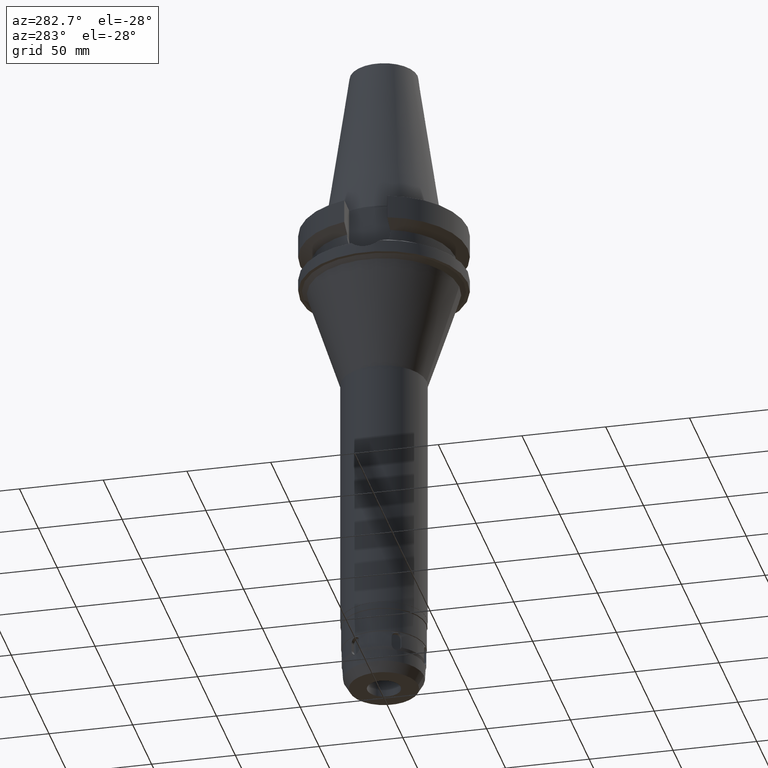
[diagram: clean part render]
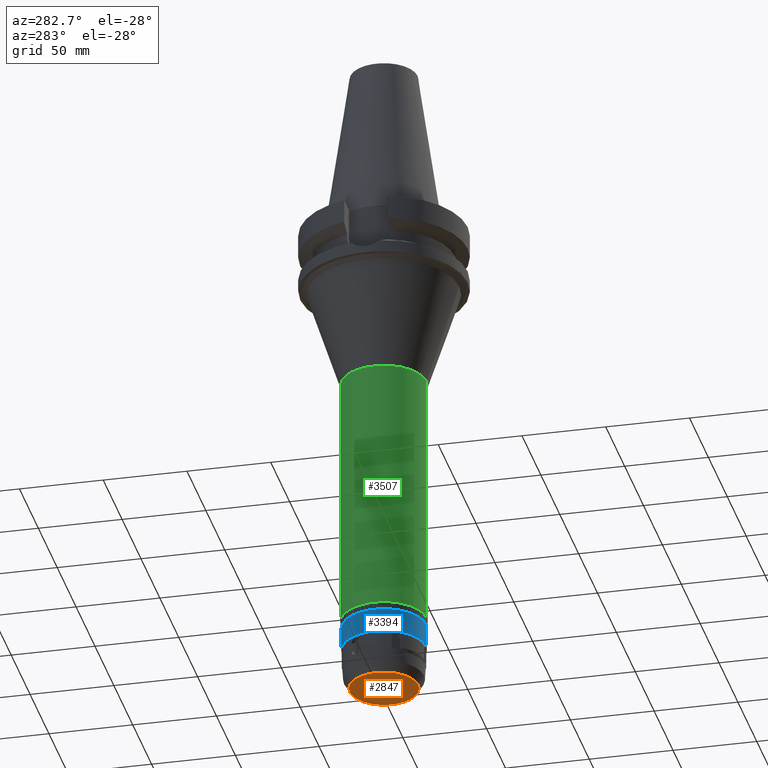
[diagram: same view with three faces highlighted in distinct colors, each labeled with its STEP entity id]
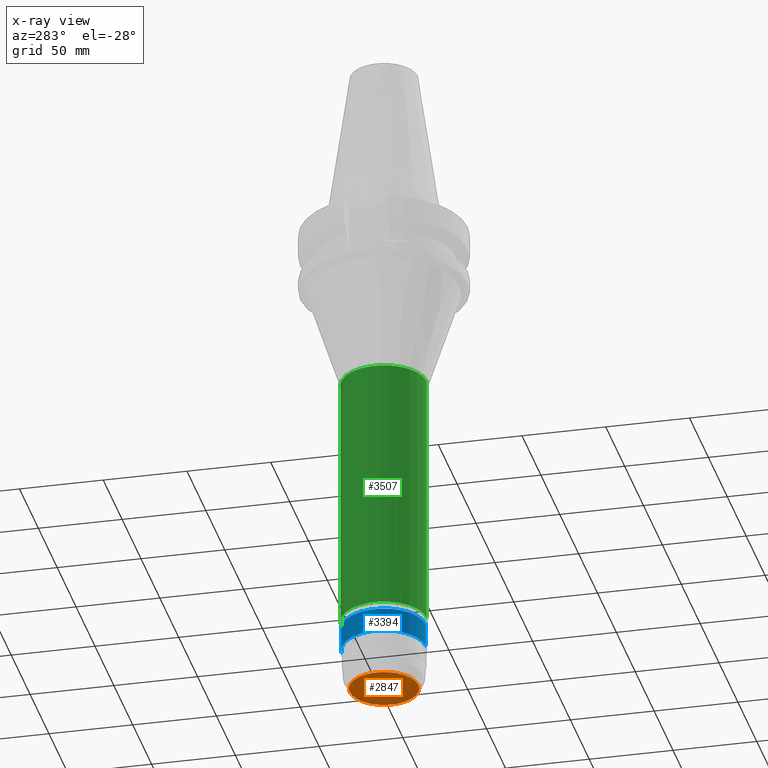
[diagram: x-ray of the same camera — body ghosted, the three highlighted faces saturated]
A machine part, auxiliary view with three faces highlighted in distinct colors.
The next image is the same camera in x-ray (body ghosted, the three faces saturated) — at least one of them is partly hidden behind the body in this view.
Their STEP definitions:

[orange] entity #2847 — the highlighted planar face has unit normal (0, 0, -1).
#216=CARTESIAN_POINT('',(0.E0,-2.413644129972E-14,-3.E2));
#217=DIRECTION('',(0.E0,0.E0,1.E0));
#218=DIRECTION('',(0.E0,-1.E0,0.E0));
#219=AXIS2_PLACEMENT_3D('',#216,#217,#218);
#224=CARTESIAN_POINT('',(0.E0,-2.413644129972E-14,-3.E2));
#225=DIRECTION('',(0.E0,0.E0,1.E0));
#226=DIRECTION('',(0.E0,1.E0,0.E0));
#227=AXIS2_PLACEMENT_3D('',#224,#225,#226);
#232=CARTESIAN_POINT('',(0.E0,2.717368782628E-14,-3.E2));
#233=DIRECTION('',(0.E0,0.E0,-1.E0));
#234=DIRECTION('',(0.E0,-1.E0,0.E0));
#235=AXIS2_PLACEMENT_3D('',#232,#233,#234);
#240=CARTESIAN_POINT('',(0.E0,2.717368782628E-14,-3.E2));
#241=DIRECTION('',(0.E0,0.E0,-1.E0));
#242=DIRECTION('',(0.E0,1.E0,0.E0));
#243=AXIS2_PLACEMENT_3D('',#240,#241,#242);
#2333=CARTESIAN_POINT('',(0.E0,1.E1,-3.E2));
#2334=VERTEX_POINT('',#2333);
#2335=CARTESIAN_POINT('',(0.E0,-1.E1,-3.E2));
#2336=VERTEX_POINT('',#2335);
#2337=CARTESIAN_POINT('',(0.E0,-2.05E1,-3.E2));
#2338=CARTESIAN_POINT('',(0.E0,2.05E1,-3.E2));
#2339=VERTEX_POINT('',#2337);
#2340=VERTEX_POINT('',#2338);
#2832=CARTESIAN_POINT('',(0.E0,-2.449293598295E-14,-3.E2));
#2833=DIRECTION('',(0.E0,0.E0,-1.E0));
#2834=DIRECTION('',(0.E0,-1.E0,0.E0));
#2835=AXIS2_PLACEMENT_3D('',#2832,#2833,#2834);
#2836=PLANE('',#2835);
#2838=ORIENTED_EDGE('',*,*,#2837,.T.);
#2840=ORIENTED_EDGE('',*,*,#2839,.T.);
#2841=EDGE_LOOP('',(#2838,#2840));
#2842=FACE_OUTER_BOUND('',#2841,.F.);
#2843=ORIENTED_EDGE('',*,*,#2825,.T.);
#2844=ORIENTED_EDGE('',*,*,#2814,.T.);
#2845=EDGE_LOOP('',(#2843,#2844));
#2846=FACE_BOUND('',#2845,.F.);
#220=CIRCLE('',#219,2.05E1);
#228=CIRCLE('',#227,2.05E1);
#236=CIRCLE('',#235,1.E1);
#244=CIRCLE('',#243,1.E1);
#2814=EDGE_CURVE('',#2334,#2336,#244,.T.);
#2825=EDGE_CURVE('',#2336,#2334,#236,.T.);
#2837=EDGE_CURVE('',#2339,#2340,#220,.T.);
#2839=EDGE_CURVE('',#2340,#2339,#228,.T.);
#2847=ADVANCED_FACE('',(#2842,#2846),#2836,.T.);

[blue] entity #3394 — the highlighted cylindrical surface (partial cylindrical patch) has radius 25 mm, axis along (0, 0, -1).
#1165=CARTESIAN_POINT('',(0.E0,-2.143438060208E-14,-2.749E2));
#1166=DIRECTION('',(0.E0,0.E0,1.E0));
#1167=DIRECTION('',(0.E0,1.E0,0.E0));
#1168=AXIS2_PLACEMENT_3D('',#1165,#1166,#1167);
#1188=DIRECTION('',(0.E0,0.E0,-1.E0));
#1189=VECTOR('',#1188,1.435E1);
#1190=CARTESIAN_POINT('',(0.E0,-2.5E1,-2.6055E2));
#1191=LINE('',#1190,#1189);
#1195=DIRECTION('',(0.E0,0.E0,-1.E0));
#1196=VECTOR('',#1195,1.435E1);
#1197=CARTESIAN_POINT('',(0.E0,2.5E1,-2.6055E2));
#1198=LINE('',#1197,#1196);
#1240=CARTESIAN_POINT('',(0.E0,-1.964027304133E-14,-2.6055E2));
#1241=DIRECTION('',(0.E0,0.E0,-1.E0));
#1242=DIRECTION('',(0.E0,-1.E0,0.E0));
#1243=AXIS2_PLACEMENT_3D('',#1240,#1241,#1242);
#2465=CARTESIAN_POINT('',(0.E0,2.5E1,-2.749E2));
#2466=VERTEX_POINT('',#2465);
#2467=CARTESIAN_POINT('',(0.E0,-2.5E1,-2.749E2));
#2468=VERTEX_POINT('',#2467);
#2469=CARTESIAN_POINT('',(0.E0,2.5E1,-2.6055E2));
#2470=VERTEX_POINT('',#2469);
#2471=CARTESIAN_POINT('',(0.E0,-2.5E1,-2.6055E2));
#2472=VERTEX_POINT('',#2471);
#3380=CARTESIAN_POINT('',(0.E0,2.717368782628E-14,1.2189E2));
#3381=DIRECTION('',(0.E0,0.E0,-1.E0));
#3382=DIRECTION('',(0.E0,-1.E0,0.E0));
#3383=AXIS2_PLACEMENT_3D('',#3380,#3381,#3382);
#3384=CYLINDRICAL_SURFACE('',#3383,2.5E1);
#3386=ORIENTED_EDGE('',*,*,#3385,.F.);
#3388=ORIENTED_EDGE('',*,*,#3387,.F.);
#3390=ORIENTED_EDGE('',*,*,#3389,.T.);
#3391=ORIENTED_EDGE('',*,*,#3373,.F.);
#3392=EDGE_LOOP('',(#3386,#3388,#3390,#3391));
#3393=FACE_OUTER_BOUND('',#3392,.F.);
#1169=CIRCLE('',#1168,2.5E1);
#1244=CIRCLE('',#1243,2.5E1);
#3373=EDGE_CURVE('',#2466,#2468,#1169,.T.);
#3385=EDGE_CURVE('',#2470,#2466,#1198,.T.);
#3387=EDGE_CURVE('',#2472,#2470,#1244,.T.);
#3389=EDGE_CURVE('',#2472,#2468,#1191,.T.);
#3394=ADVANCED_FACE('',(#3393),#3384,.T.);

[green] entity #3507 — the highlighted cylindrical surface (partial cylindrical patch) has radius 25.5 mm, axis along (0, 0, -1).
#1270=CARTESIAN_POINT('',(0.E0,2.717368782628E-14,-2.562E2));
#1271=DIRECTION('',(0.E0,0.E0,1.E0));
#1272=DIRECTION('',(0.E0,1.E0,0.E0));
#1273=AXIS2_PLACEMENT_3D('',#1270,#1271,#1272);
#1294=DIRECTION('',(0.E0,-1.002799547527E-14,-1.E0));
#1295=VECTOR('',#1294,1.55883E2);
#1296=CARTESIAN_POINT('',(0.E0,2.55E1,-1.00317E2));
#1297=LINE('',#1296,#1295);
#1301=DIRECTION('',(0.E0,1.002799547527E-14,-1.E0));
#1302=VECTOR('',#1301,1.55883E2);
#1303=CARTESIAN_POINT('',(0.E0,-2.55E1,-1.00317E2));
#1304=LINE('',#1303,#1302);
#1315=CARTESIAN_POINT('',(0.E0,0.E0,-1.00317E2));
#1316=DIRECTION('',(0.E0,0.E0,-1.E0));
#1317=DIRECTION('',(0.E0,-1.E0,0.E0));
#1318=AXIS2_PLACEMENT_3D('',#1315,#1316,#1317);
#2481=CARTESIAN_POINT('',(0.E0,-2.55E1,-2.562E2));
#2482=CARTESIAN_POINT('',(0.E0,2.55E1,-2.562E2));
#2483=VERTEX_POINT('',#2481);
#2484=VERTEX_POINT('',#2482);
#2485=CARTESIAN_POINT('',(0.E0,2.55E1,-1.00317E2));
#2486=VERTEX_POINT('',#2485);
#2487=CARTESIAN_POINT('',(0.E0,-2.55E1,-1.00317E2));
#2488=VERTEX_POINT('',#2487);
#3495=CARTESIAN_POINT('',(0.E0,2.717368782628E-14,1.2189E2));
#3496=DIRECTION('',(0.E0,0.E0,-1.E0));
#3497=DIRECTION('',(0.E0,-1.E0,0.E0));
#3498=AXIS2_PLACEMENT_3D('',#3495,#3496,#3497);
#3499=CYLINDRICAL_SURFACE('',#3498,2.55E1);
#3500=ORIENTED_EDGE('',*,*,#3485,.F.);
#3502=ORIENTED_EDGE('',*,*,#3501,.F.);
#3503=ORIENTED_EDGE('',*,*,#3488,.T.);
#3504=ORIENTED_EDGE('',*,*,#3471,.F.);
#3505=EDGE_LOOP('',(#3500,#3502,#3503,#3504));
#3506=FACE_OUTER_BOUND('',#3505,.F.);
#1274=CIRCLE('',#1273,2.55E1);
#1319=CIRCLE('',#1318,2.55E1);
#3471=EDGE_CURVE('',#2484,#2483,#1274,.T.);
#3485=EDGE_CURVE('',#2486,#2484,#1297,.T.);
#3488=EDGE_CURVE('',#2488,#2483,#1304,.T.);
#3501=EDGE_CURVE('',#2488,#2486,#1319,.T.);
#3507=ADVANCED_FACE('',(#3506),#3499,.T.);